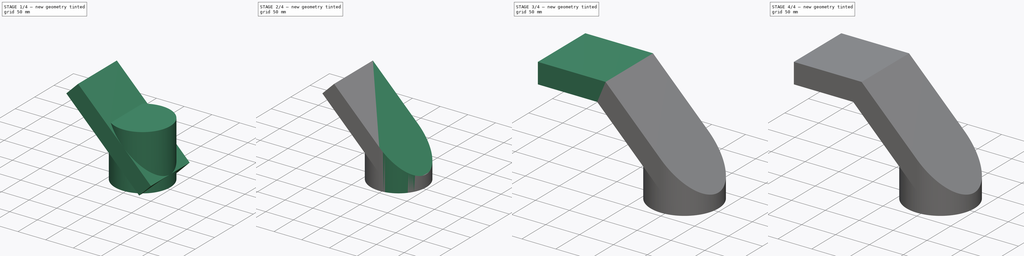
[diagram: build sequence overview — one tinted view per stage of 4, left to right]
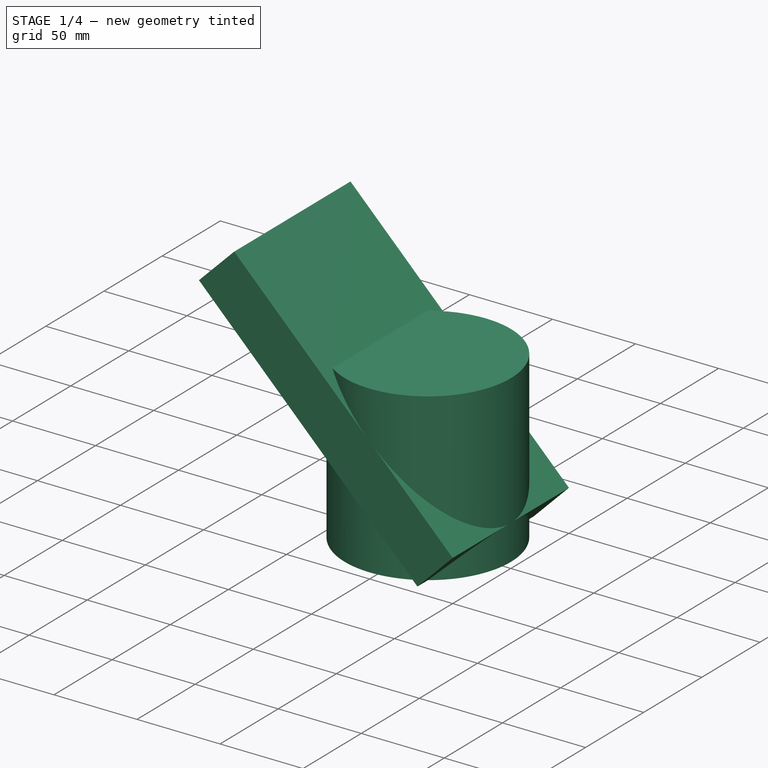
[diagram: stage 1 of 4 — iso view after this stage's code; geometry added in this stage tinted green]
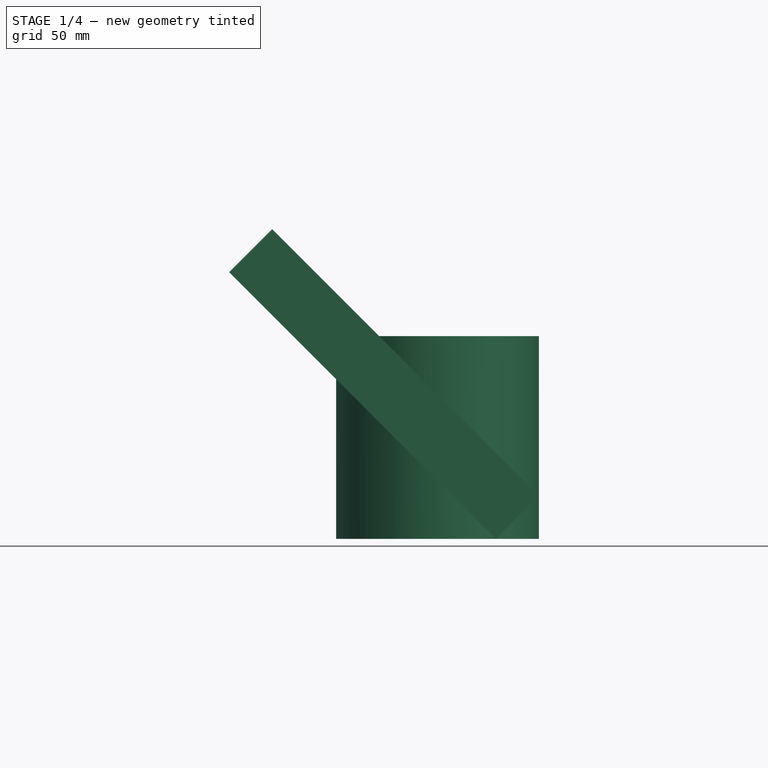
[diagram: stage 1 of 4 — front view after this stage's code; geometry added in this stage tinted green]
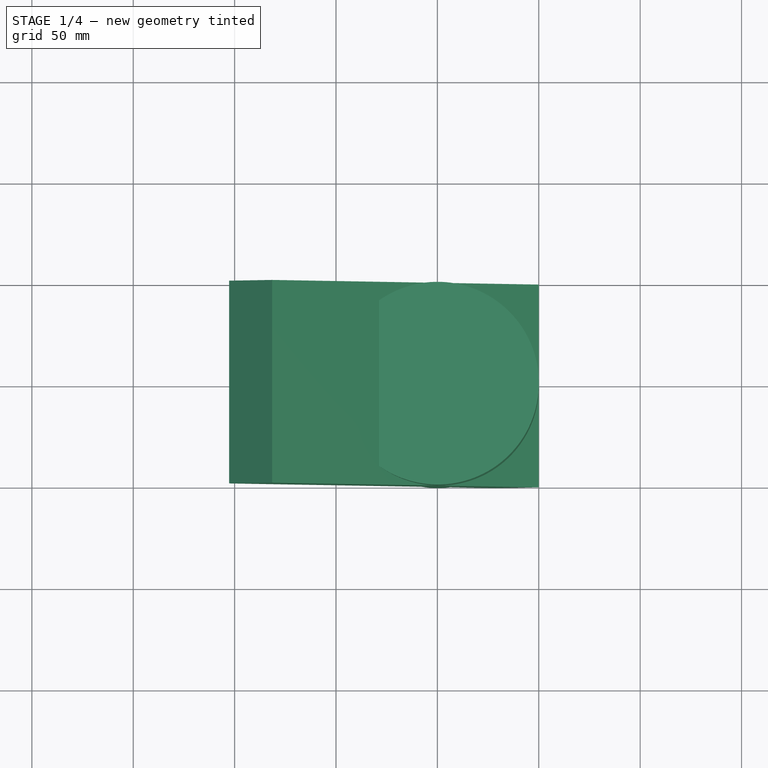
[diagram: stage 1 of 4 — top view after this stage's code; geometry added in this stage tinted green]
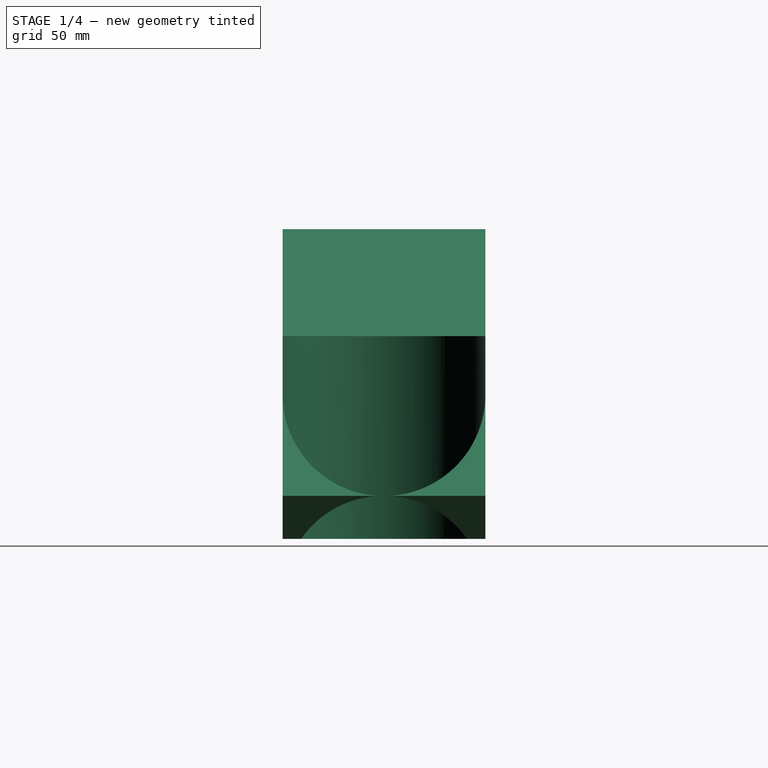
[diagram: stage 1 of 4 — right view after this stage's code; geometry added in this stage tinted green]
FCSTD DOCUMENT  (FreeCAD 1.0R39109 (Git))
Label: WindowVentilation
License: All rights reserved
LicenseURL: https://en.wikipedia.org/wiki/All_rights_reserved
objects: Sketcher::SketchObject×9, PartDesign::Pocket×6, PartDesign::Pad×3, Measure::MeasureDistanceDetached×1, App::DocumentObjectGroup×1, PartDesign::Body×1
note: 46 computed .brp shape members not serialized (recipe doc carries the construction recipe); baked Part::Feature solids carry a one-line shape summary decoded from their .brp

FEATURE [Sketcher::SketchObject] Sketch
  ArcFitTolerance = 1e-06
  AttachmentSupport = -> [XY_Plane]
  FullyConstrained = true
  MakeInternals = false
  MapMode = 5
  sketch-geometry (1):
    g0: Circle CenterX=0.062028 CenterY=0 CenterZ=0 NormalX=0 NormalY=0 NormalZ=1 AngleXU=0 Radius=50
  constraints (2):
    c: PointOnObject(g0,g-1)
    c: Block(g0)
FEATURE [PartDesign::Pad] Pad
  Direction = (0,0,1)
  Length = 100
  Length2 = 10
  Profile = -> Sketch
  ReferenceAxis = -> Sketch [N_Axis]
  Refine = true
  Suppressed = false
  Type = 0
FEATURE [Sketcher::SketchObject] Sketch002
  ArcFitTolerance = 1e-06
  AttachmentSupport = -> [XZ_Plane]
  FullyConstrained = true
  MakeInternals = false
  MapMode = 5
  Placement = pos=(0,0,0) rot=(1,0,0;1.5708rad)
  sketch-geometry (4):
    g0: LineSegment StartX=-81.5219 StartY=152.735 StartZ=0 EndX=-102.735 EndY=131.522 EndZ=0
    g1: LineSegment StartX=-102.735 StartY=131.522 StartZ=0 EndX=28.7868 EndY=1.6e-15 EndZ=0
    g2: LineSegment StartX=28.7868 StartY=1.6e-15 StartZ=0 EndX=50 EndY=21.2132 EndZ=0
    g3: LineSegment StartX=50 StartY=21.2132 StartZ=0 EndX=-81.5219 EndY=152.735 EndZ=0
  constraints (12):
    c: Coincident(g0,g1)
    c: Coincident(g1,g2)
    c: Coincident(g2,g3)
    c: Coincident(g3,g0)
    c: Distance(g1,g3) = 30
    c: Angle(g1,g-2) = 2.35619
    c: Parallel(g1,g3)
    c: Parallel(g2,g0)
    c: Angle(g2,g1) = 1.5708
    c: Distance(g2,g-2) = 50
    c: Distance(g1,g1) = 186
    c: PointOnObject(g1,g-1)
FEATURE [PartDesign::Pad] Pad001
  BaseFeature = -> Pad
  Direction = (0,-1,2e-16)
  Length = 50
  Length2 = 50
  Profile = -> Sketch002
  ReferenceAxis = -> Sketch002 [N_Axis]
  Refine = true
  Suppressed = false
  Type = 4
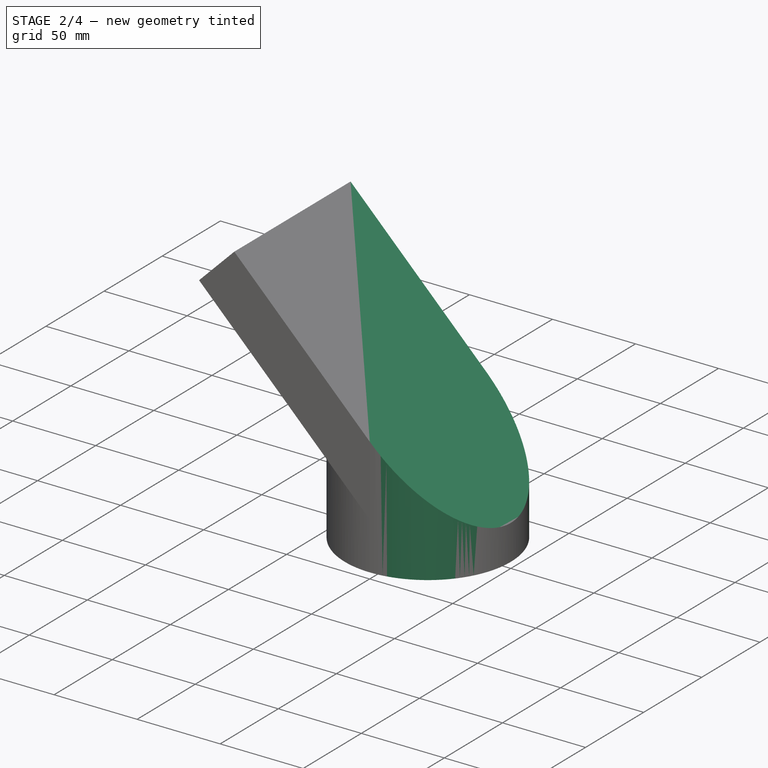
[diagram: stage 2 of 4 — iso view after this stage's code; geometry added in this stage tinted green]
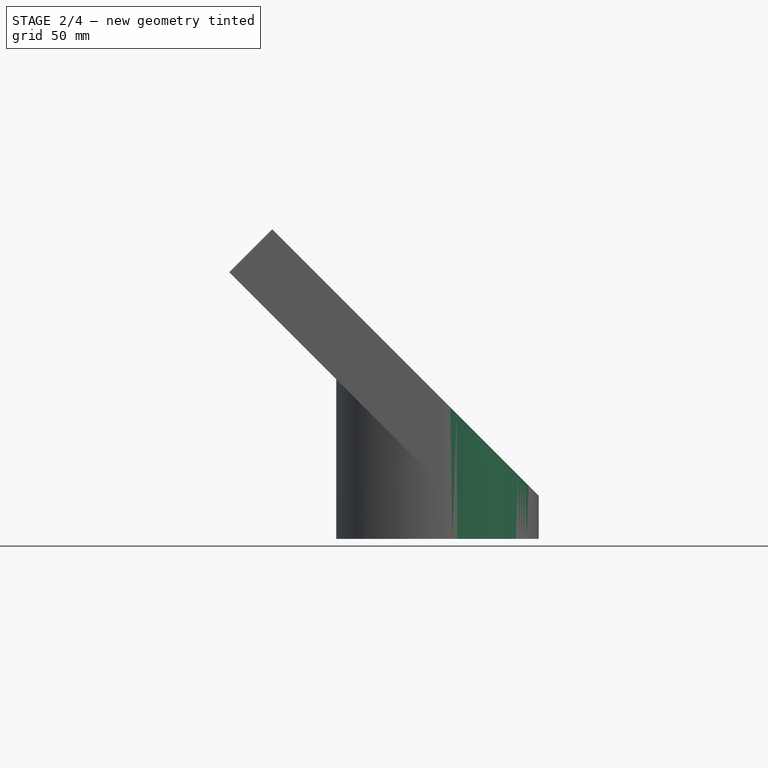
[diagram: stage 2 of 4 — front view after this stage's code; geometry added in this stage tinted green]
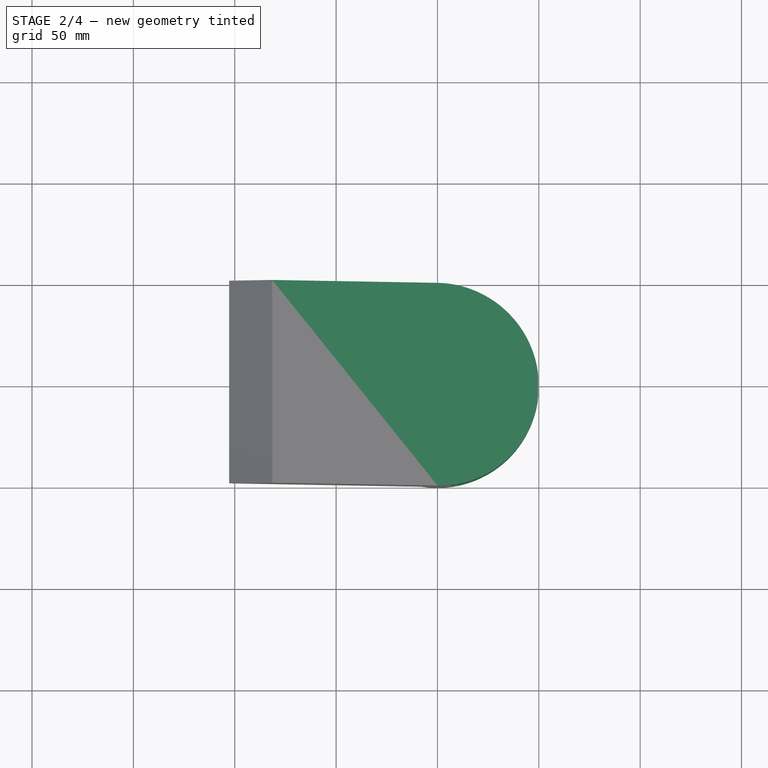
[diagram: stage 2 of 4 — top view after this stage's code; geometry added in this stage tinted green]
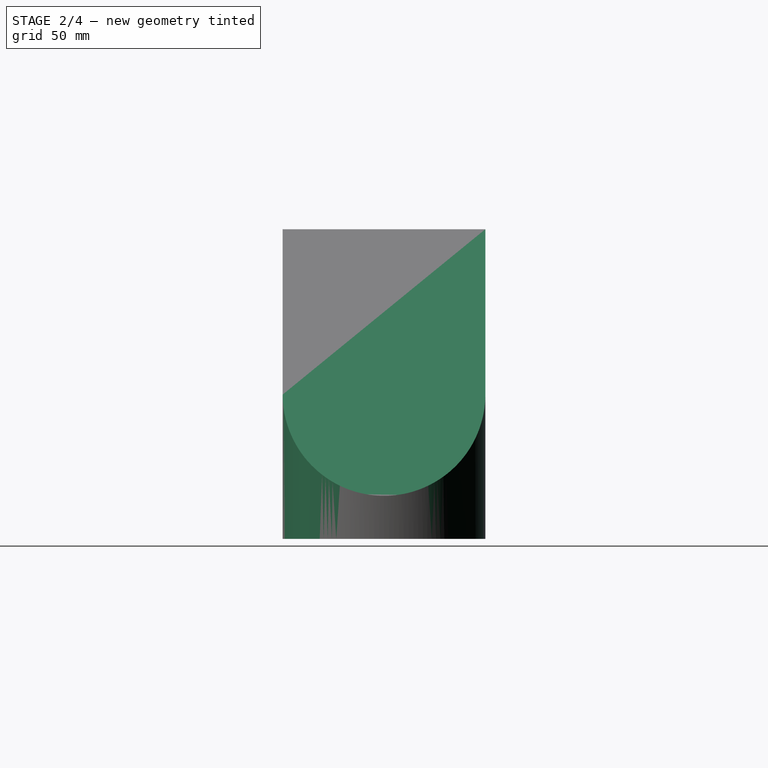
[diagram: stage 2 of 4 — right view after this stage's code; geometry added in this stage tinted green]
FEATURE [Sketcher::SketchObject] Sketch003
  ArcFitTolerance = 1e-06
  AttachmentSupport = -> [Pad001]
  ExternalGeometry = -> [Pad001]
  FullyConstrained = true
  MakeInternals = false
  MapMode = 5
  Placement = pos=(-117.128,2.65e-14,117.128) rot=(0.357407,-0.357407,-0.862856;1.71777rad)
  sketch-geometry (4):
    g0: LineSegment StartX=-50 StartY=50.3553 StartZ=0 EndX=50 EndY=50.3553 EndZ=0
    g1: LineSegment StartX=50 StartY=50.3553 StartZ=0 EndX=50 EndY=150.355 EndZ=0
    g2: LineSegment StartX=50 StartY=150.355 StartZ=0 EndX=-50 EndY=150.355 EndZ=0
    g3: LineSegment StartX=-50 StartY=150.355 StartZ=0 EndX=-50 EndY=50.3553 EndZ=0
  constraints (11):
    c: Coincident(g0,g1)
    c: Coincident(g1,g2)
    c: Coincident(g2,g3)
    c: Coincident(g3,g0)
    c: Horizontal(g0)
    c: Horizontal(g2)
    c: Vertical(g1)
    c: Vertical(g3)
    c: Distance(g1,g3) = 100
    c: Distance(g0,g2) = 100
    c: Coincident(g0,g-3)
FEATURE [PartDesign::Pocket] Pocket
  BaseFeature = -> Pad001
  Direction = (0.707107,0,-0.707107)
  Length = 5
  Length2 = 5
  Profile = -> Sketch003
  ReferenceAxis = -> Sketch003 [N_Axis]
  Refine = true
  Suppressed = false
  Type = 1
FEATURE [Sketcher::SketchObject] Sketch004
  ArcFitTolerance = 1e-06
  AttachmentSupport = -> [Pocket]
  ExternalGeometry = -> [Pocket]
  FullyConstrained = true
  MakeInternals = false
  MapMode = 5
  Placement = pos=(0,0,0) rot=(1,0,0;3.14159rad)
  sketch-geometry (4):
    g0: ArcOfCircle CenterX=-3.85225e-05 CenterY=-4.3e-15 CenterZ=0 NormalX=0 NormalY=0 NormalZ=1 AngleXU=0 Radius=50 StartAngle=4.71363 EndAngle=7.85274
    g1: LineSegment StartX=0.062028 StartY=50 StartZ=0 EndX=50 EndY=50 EndZ=0
    g2: LineSegment StartX=50 StartY=50 StartZ=0 EndX=50 EndY=-50 EndZ=0
    g3: LineSegment StartX=50 StartY=-50 StartZ=0 EndX=0.062028 EndY=-50 EndZ=0
  constraints (10):
    c: Coincident(g0,g-3)
    c: Coincident(g0,g-6)
    c: Distance(g-1,g0) = 50
    c: Coincident(g0,g1)
    c: Coincident(g1,g2)
    c: Coincident(g2,g-5)
    c: Vertical(g2)
    c: Tangent(g2,g0)
    c: Coincident(g2,g3)
    c: Coincident(g3,g0)
FEATURE [PartDesign::Pocket] Pocket001
  BaseFeature = -> Pocket
  Direction = (0,0,1)
  Length = 5
  Length2 = 5
  Profile = -> Sketch004
  ReferenceAxis = -> Sketch004 [N_Axis]
  Refine = true
  Suppressed = false
  Type = 1
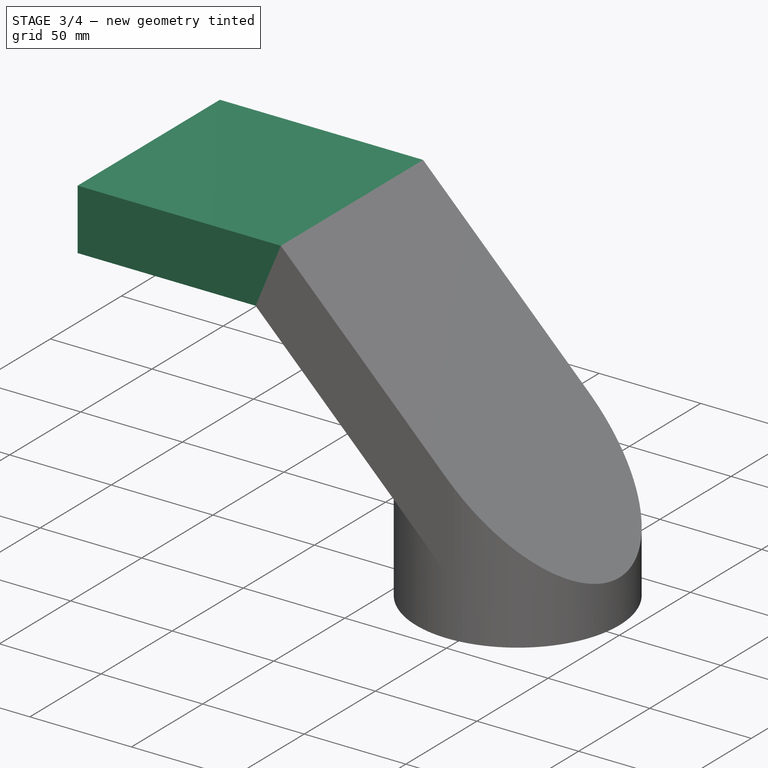
[diagram: stage 3 of 4 — iso view after this stage's code; geometry added in this stage tinted green]
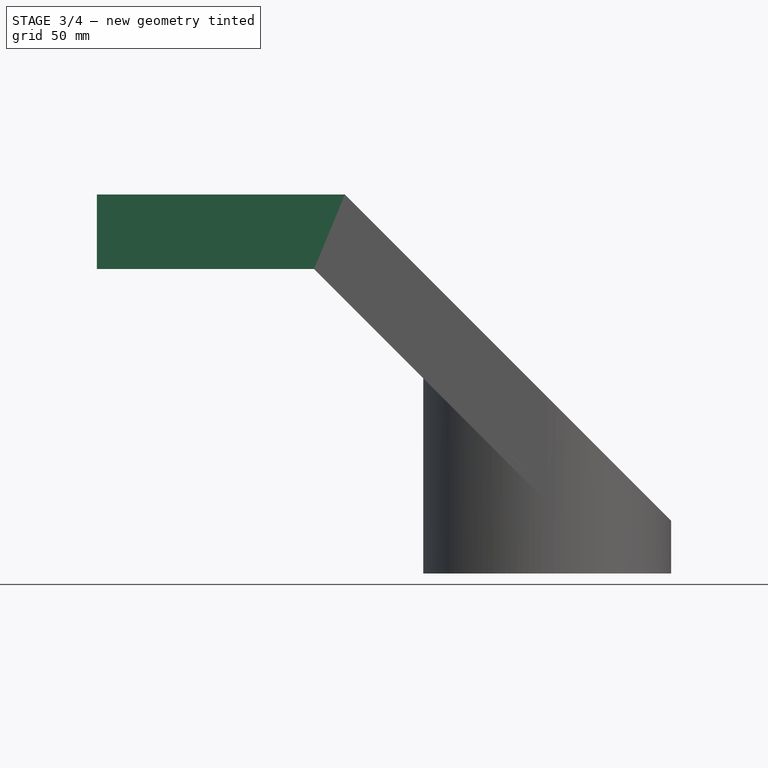
[diagram: stage 3 of 4 — front view after this stage's code; geometry added in this stage tinted green]
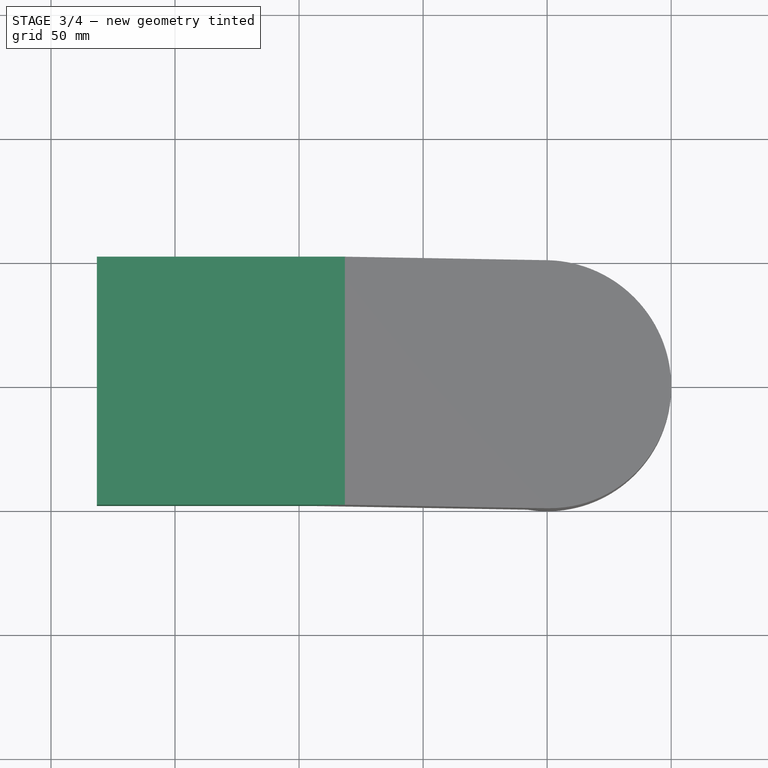
[diagram: stage 3 of 4 — top view after this stage's code; geometry added in this stage tinted green]
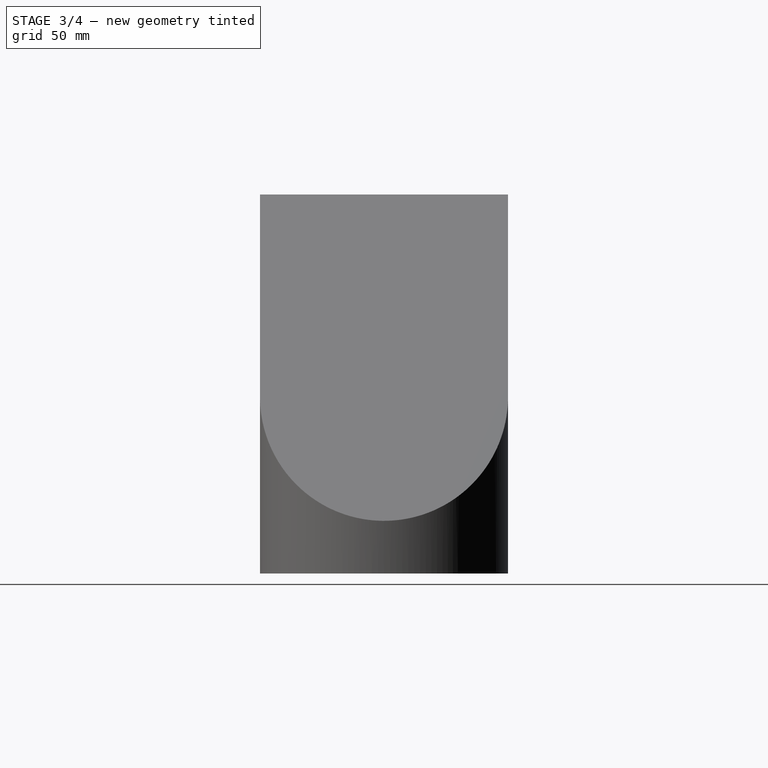
[diagram: stage 3 of 4 — right view after this stage's code; geometry added in this stage tinted green]
FEATURE [Sketcher::SketchObject] Sketch005
  ArcFitTolerance = 1e-06
  AttachmentSupport = -> [Pocket001]
  FullyConstrained = true
  MakeInternals = false
  MapMode = 5
  Placement = pos=(0,0,0) rot=(1,0,0;3.14159rad)
  sketch-geometry (1):
    g0: Circle CenterX=0 CenterY=0 CenterZ=0 NormalX=0 NormalY=0 NormalZ=1 AngleXU=0 Radius=47
  constraints (2):
    c: Diameter(g0) = 94
    c: Coincident(g0,g-1)
FEATURE [PartDesign::Pocket] Pocket002
  BaseFeature = -> Pocket001
  Direction = (0,0,1)
  Length = 0
  Length2 = 5
  Offset = -5
  Profile = -> Sketch005
  ReferenceAxis = -> Sketch005 [N_Axis]
  Refine = true
  Suppressed = false
  Type = 3
  UpToFace = -> Pocket001 [Face4]
FEATURE [Sketcher::SketchObject] Sketch006
  ArcFitTolerance = 1e-06
  AttachmentSupport = -> [Pocket002]
  ExternalGeometry = -> [Pocket002]
  FullyConstrained = true
  MakeInternals = false
  MapMode = 5
  Placement = pos=(-117.128,2.65e-14,117.128) rot=(0.357407,-0.357407,-0.862856;1.71777rad)
  sketch-geometry (4):
    g0: LineSegment StartX=-47 StartY=47.3553 StartZ=0 EndX=-47 EndY=23.3553 EndZ=0
    g1: LineSegment StartX=-47 StartY=23.3553 StartZ=0 EndX=47 EndY=23.3553 EndZ=0
    g2: LineSegment StartX=47 StartY=23.3553 StartZ=0 EndX=47 EndY=47.3553 EndZ=0
    g3: LineSegment StartX=47 StartY=47.3553 StartZ=0 EndX=-47 EndY=47.3553 EndZ=0
  constraints (12):
    c: Coincident(g0,g1)
    c: Coincident(g1,g2)
    c: Coincident(g2,g3)
    c: Coincident(g3,g0)
    c: Vertical(g0)
    c: Vertical(g2)
    c: Horizontal(g1)
    c: Horizontal(g3)
    c: Distance(g-3,g3) = 3
    c: Distance(g-5,g2) = 3
    c: Distance(g-4,g1) = 3
    c: Distance(g-6,g0) = 3
FEATURE [PartDesign::Pocket] Pocket003
  BaseFeature = -> Pocket002
  Direction = (0.707107,0,-0.707107)
  Length = 130
  Length2 = -3
  Profile = -> Sketch006
  ReferenceAxis = -> Sketch006 [N_Axis]
  Refine = true
  Suppressed = false
  Type = 4
FEATURE [Sketcher::SketchObject] Sketch007
  ArcFitTolerance = 1e-06
  AttachmentSupport = -> [Pocket003]
  ExternalGeometry = -> [Pocket003]
  FullyConstrained = true
  MakeInternals = false
  MapMode = 5
  Placement = pos=(0,50,-1.15e-14) rot=(0,0.707107,0.707107;3.14159rad)
  sketch-geometry (4):
    g0: LineSegment StartX=81.5219 StartY=152.735 StartZ=0 EndX=81.5219 EndY=122.735 EndZ=0
    g1: LineSegment StartX=81.5219 StartY=122.735 StartZ=0 EndX=181.522 EndY=122.735 EndZ=0
    g2: LineSegment StartX=181.522 StartY=122.735 StartZ=0 EndX=181.522 EndY=152.735 EndZ=0
    g3: LineSegment StartX=181.522 StartY=152.735 StartZ=0 EndX=81.5219 EndY=152.735 EndZ=0
  constraints (11):
    c: Coincident(g0,g1)
    c: Coincident(g1,g2)
    c: Coincident(g2,g3)
    c: Coincident(g3,g0)
    c: Vertical(g0)
    c: Vertical(g2)
    c: Horizontal(g1)
    c: Horizontal(g3)
    c: Distance(g0,g2) = 100
    c: Distance(g1,g3) = 30
    c: Coincident(g0,g-3)
FEATURE [PartDesign::Pad] Pad002
  BaseFeature = -> Pocket003
  Direction = (0,1,-2e-16)
  Length = 100
  Length2 = 10
  Profile = -> Sketch007
  ReferenceAxis = -> Sketch007 [N_Axis]
  Refine = true
  Reversed = true
  Suppressed = false
  Type = 0
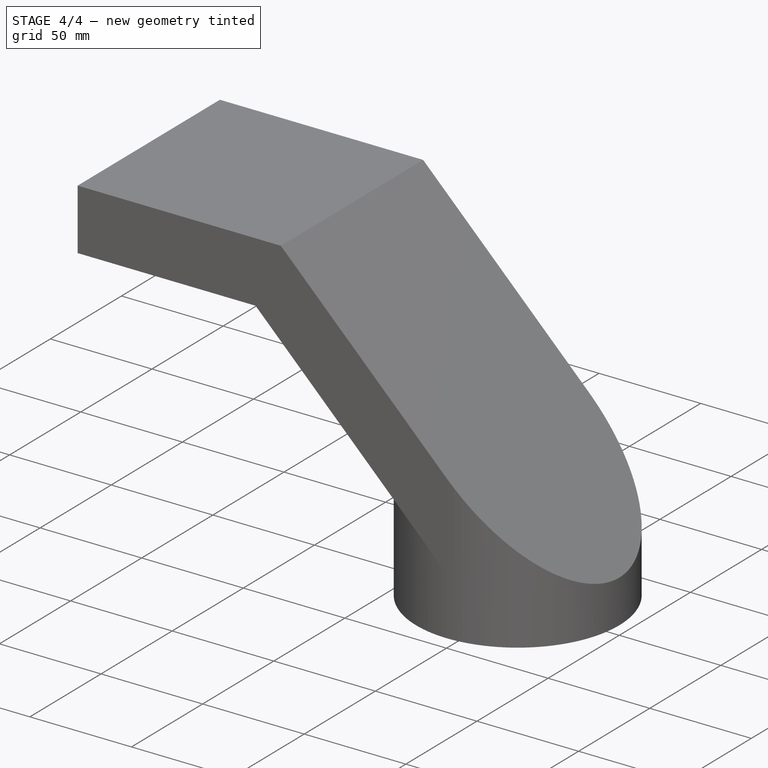
[diagram: stage 4 of 4 — iso view after this stage's code; geometry added in this stage tinted green]
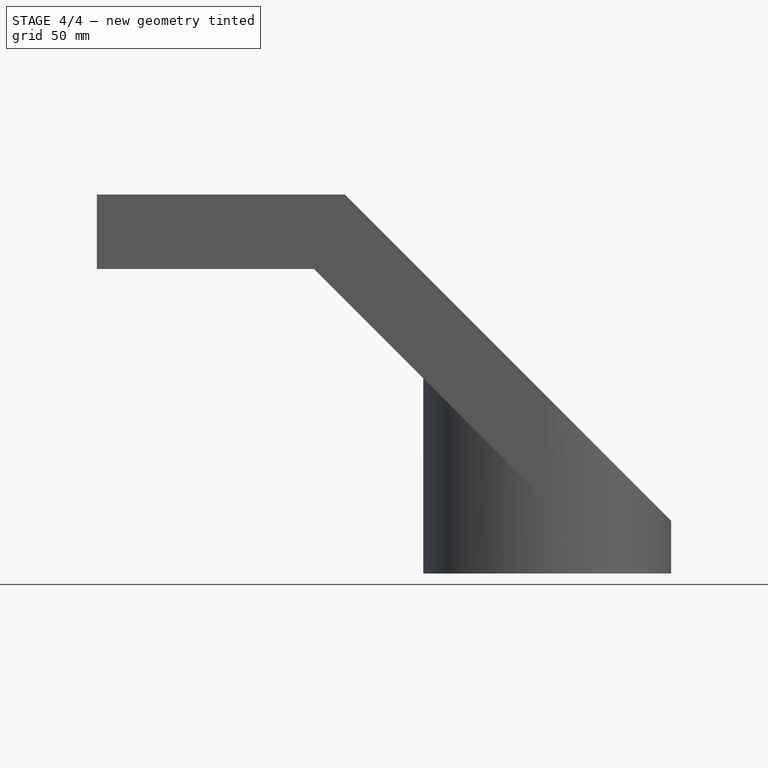
[diagram: stage 4 of 4 — front view after this stage's code; geometry added in this stage tinted green]
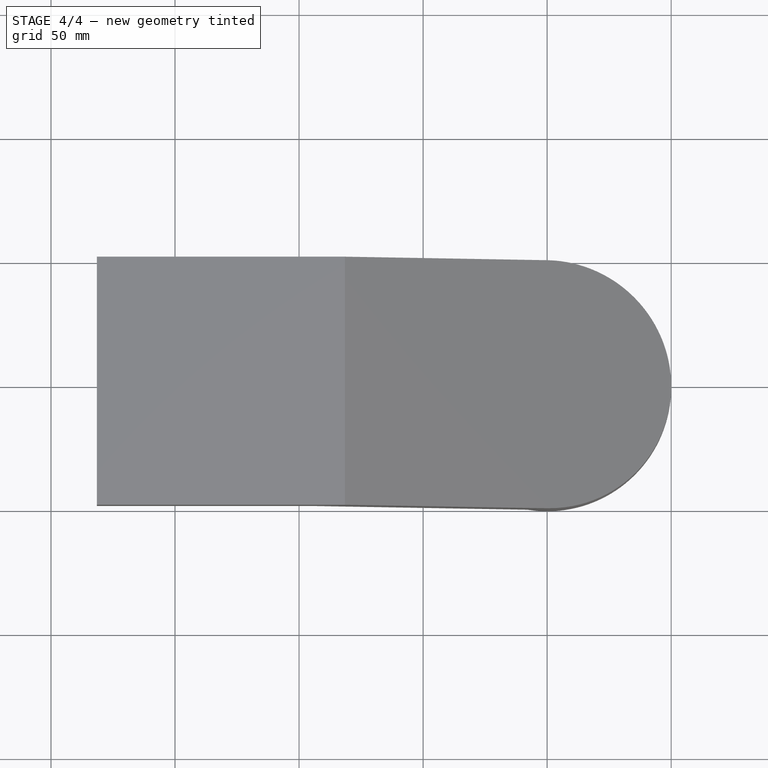
[diagram: stage 4 of 4 — top view after this stage's code; geometry added in this stage tinted green]
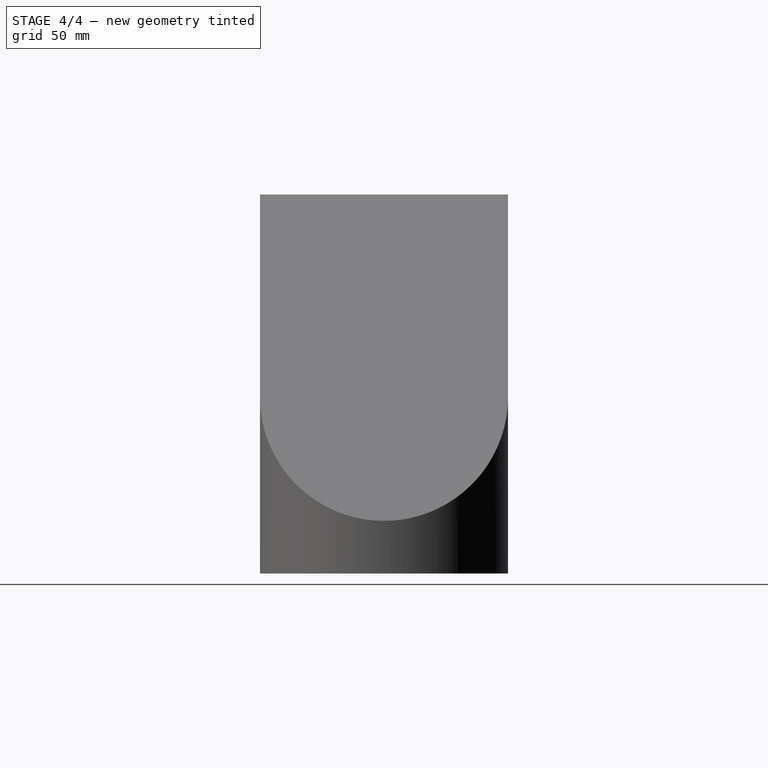
[diagram: stage 4 of 4 — right view after this stage's code; geometry added in this stage tinted green]
FEATURE [Sketcher::SketchObject] Sketch008
  ArcFitTolerance = 1e-06
  AttachmentSupport = -> [Pad002]
  ExternalGeometry = -> [Sketch007,Pad002]
  FullyConstrained = true
  MakeInternals = false
  MapMode = 5
  Placement = pos=(-181.522,0,0) rot=(0.57735,-0.57735,-0.57735;2.0944rad)
  sketch-geometry (4):
    g0: LineSegment StartX=-47 StartY=149.735 StartZ=0 EndX=-47 EndY=125.735 EndZ=0
    g1: LineSegment StartX=-47 StartY=125.735 StartZ=0 EndX=47 EndY=125.735 EndZ=0
    g2: LineSegment StartX=47 StartY=125.735 StartZ=0 EndX=47 EndY=149.735 EndZ=0
    g3: LineSegment StartX=47 StartY=149.735 StartZ=0 EndX=-47 EndY=149.735 EndZ=0
  constraints (12):
    c: Coincident(g0,g1)
    c: Coincident(g1,g2)
    c: Coincident(g2,g3)
    c: Coincident(g3,g0)
    c: Vertical(g0)
    c: Vertical(g2)
    c: Horizontal(g1)
    c: Horizontal(g3)
    c: Distance(g-3,g0) = 3
    c: Distance(g-4,g3) = 3
    c: Distance(g2,g-6) = 3
    c: Distance(g-5,g1) = 3
FEATURE [PartDesign::Pocket] Pocket004
  BaseFeature = -> Pad002
  Direction = (1,0,0)
  Length = 0
  Length2 = 5
  Offset = -5
  Profile = -> Sketch008
  ReferenceAxis = -> Sketch008 [N_Axis]
  Refine = true
  Suppressed = false
  Type = 3
  UpToFace = -> Pad002 [Face5]
FEATURE [Measure::MeasureDistanceDetached] Distance_Free  label="Distance_Free: 64,69 mm"
  Distance = 64.6949
  DistanceX = 45.746
  DistanceY = 0.188028
  DistanceZ = 45.746
  Position1 = (-49.8591,-0.297779,75.8175)
  Position2 = (-95.6051,-0.485806,121.563)
FEATURE [App::DocumentObjectGroup] Measurements
  Group = -> [Distance_Free]
FEATURE [Sketcher::SketchObject] Sketch009
  ArcFitTolerance = 1e-06
  AttachmentSupport = -> [Pocket003]
  ExternalGeometry = -> [Pocket003,Sketch007]
  FullyConstrained = true
  MakeInternals = false
  MapMode = 5
  Placement = pos=(-117.128,2.65e-14,117.128) rot=(0.357407,-0.357407,-0.862856;1.71777rad)
  sketch-geometry (4):
    g0: LineSegment StartX=-47 StartY=47.3553 StartZ=0 EndX=-47 EndY=23.3553 EndZ=0
    g1: LineSegment StartX=-47 StartY=23.3553 StartZ=0 EndX=47 EndY=23.3553 EndZ=0
    g2: LineSegment StartX=47 StartY=23.3553 StartZ=0 EndX=47 EndY=47.3553 EndZ=0
    g3: LineSegment StartX=47 StartY=47.3553 StartZ=0 EndX=-47 EndY=47.3553 EndZ=0
  constraints (12):
    c: Coincident(g0,g1)
    c: Coincident(g1,g2)
    c: Coincident(g2,g3)
    c: Coincident(g3,g0)
    c: Vertical(g0)
    c: Vertical(g2)
    c: Horizontal(g1)
    c: Horizontal(g3)
    c: Distance(g-3,g3) = 3
    c: Distance(g-4,g0) = 3
    c: Distance(g-6,g2) = 3
    c: Distance(g-5,g1) = 3
FEATURE [PartDesign::Pocket] Pocket005
  BaseFeature = -> Pocket004
  Direction = (0.707107,0,-0.707107)
  Length = 100
  Length2 = 5
  Profile = -> Sketch009
  ReferenceAxis = -> Sketch009 [N_Axis]
  Refine = true
  Suppressed = false
  Type = 0
FEATURE [PartDesign::Body] Body
  AllowCompound = false
  Group = -> [Sketch,Pad,Sketch002,Pad001,Sketch003,Pocket,Sketch004,Pocket001,Sketch005,Pocket002,Sketch006,Pocket003,Sketch007,Pad002,Sketch008,Pocket004,Sketch009,Pocket005]
  Origin = -> Origin
  Tip = -> Pocket005
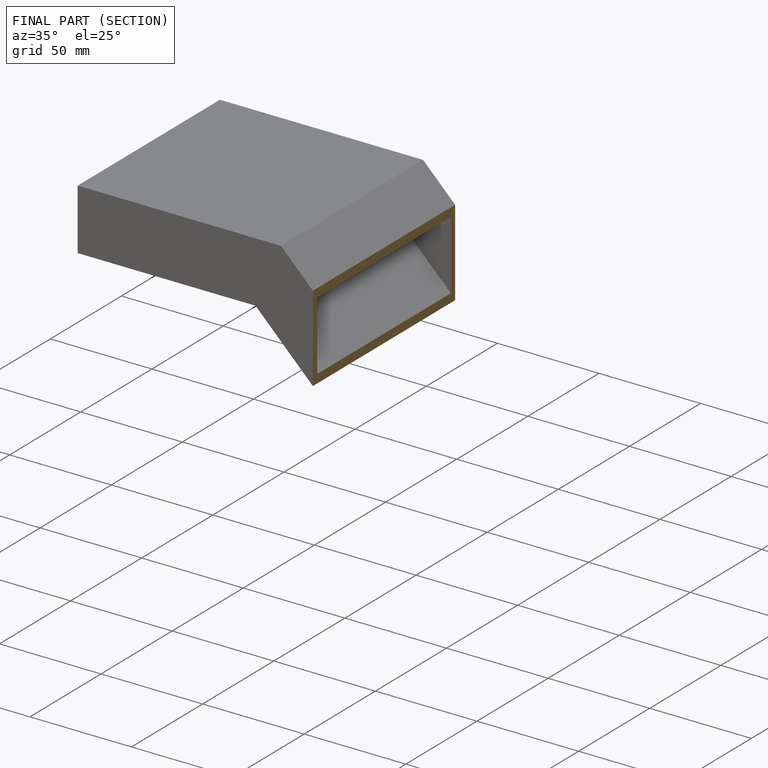
[diagram: finished part — half-section view (interior)]
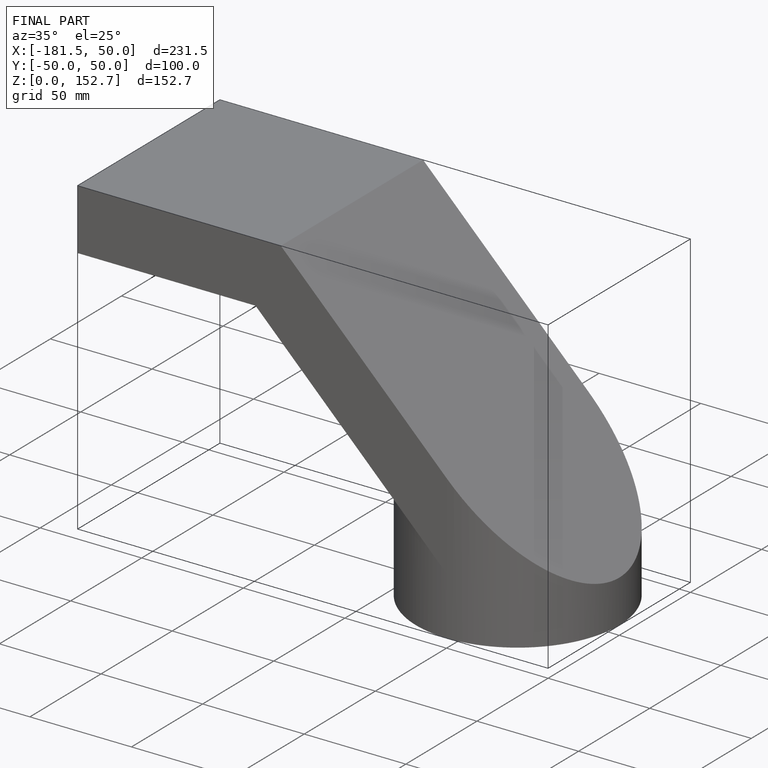
[diagram: finished part — iso view with bounding-box wireframe]
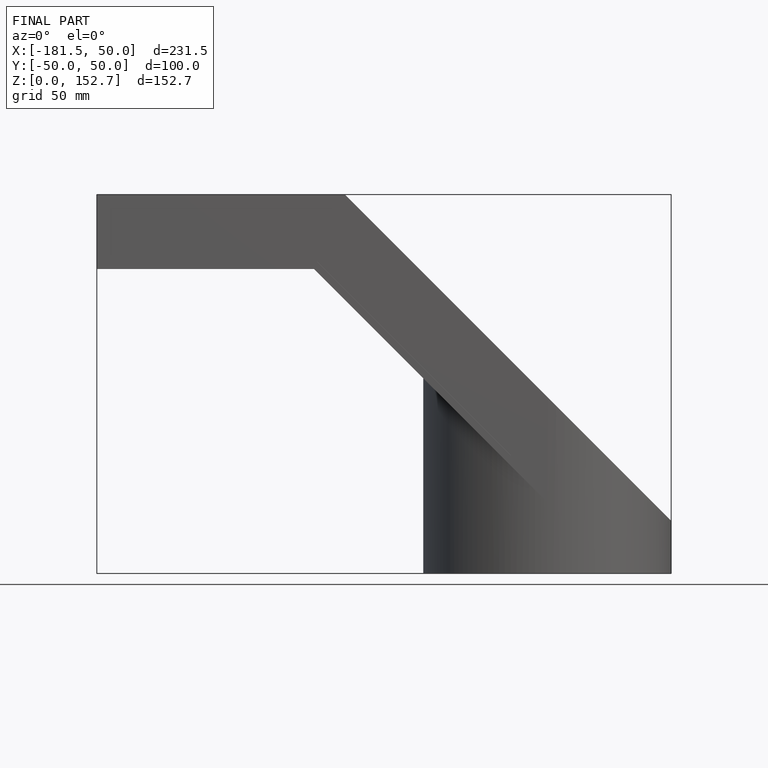
[diagram: finished part — front view with bounding-box wireframe]
